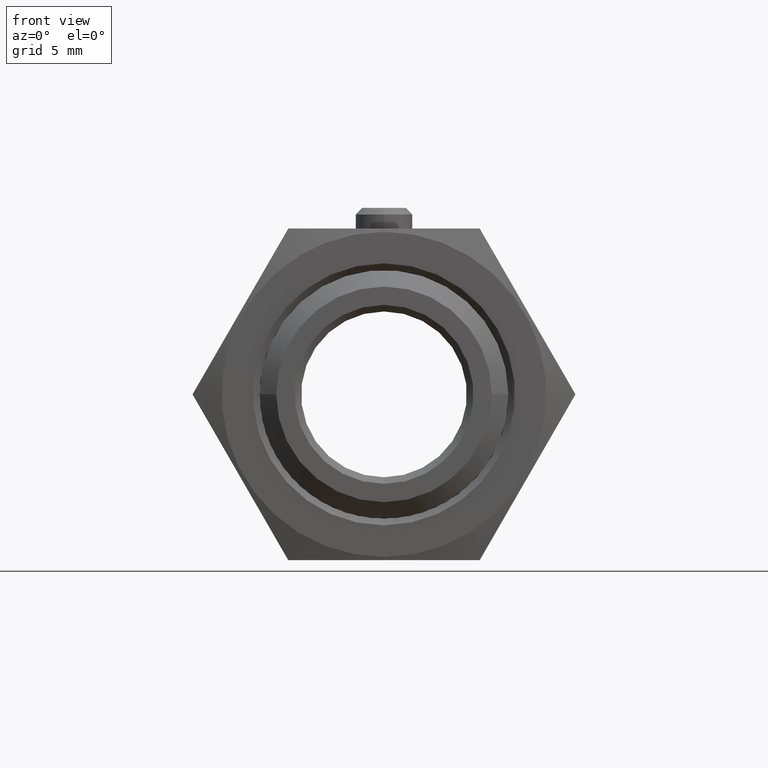
[diagram: clean part render]
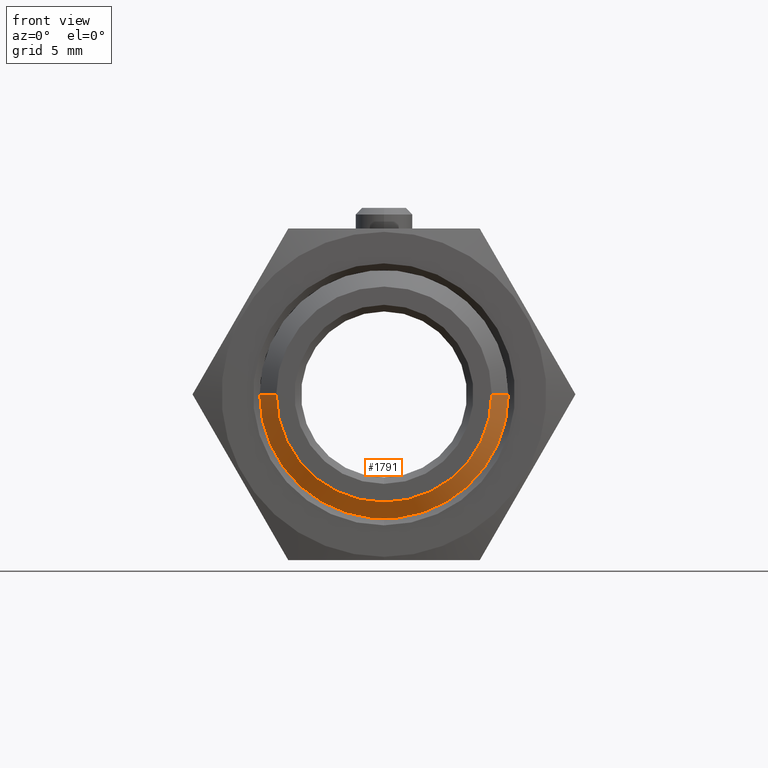
[diagram: same view with one face highlighted and labeled with its STEP entity id]
A machine part, front view. The second image highlights one B-rep face of the part: STEP entity #1791.
In plain terms, the highlighted conical surface has half-angle 45 deg.
Its self-contained STEP definition (entity closure, byte-faithful):
#737 = CARTESIAN_POINT ( 'NONE',  ( 4.127500000000003100, -9.842500000000001100, 5.443555022209986900E-016 ) ) ;
#932 = CARTESIAN_POINT ( 'NONE',  ( 4.127500000000003100, -9.842500000000001100, 5.054729663480701700E-016 ) ) ;
#933 = LINE ( 'NONE', #932, #1110 ) ;
#1110 = VECTOR ( 'NONE', #1264, 999.9999999999998900 ) ;
#1111 = CARTESIAN_POINT ( 'NONE',  ( -4.127499999999999500, -9.842500000000001100, 0.0000000000000000000 ) ) ;
#1264 = DIRECTION ( 'NONE',  ( 0.7071067811865473500, 0.7071067811865477900, 8.659560562354932900E-017 ) ) ;
#1353 = CARTESIAN_POINT ( 'NONE',  ( 4.762500000000002800, -9.207499999999999600, 5.832380380939271100E-016 ) ) ;
#1357 = DIRECTION ( 'NONE',  ( -0.7071067811865475700, 0.7071067811865474600, 0.0000000000000000000 ) ) ;
#1358 = VECTOR ( 'NONE', #1357, 1000.000000000000000 ) ;
#1359 = CARTESIAN_POINT ( 'NONE',  ( -4.127499999999999500, -9.842500000000001100, 0.0000000000000000000 ) ) ;
#1360 = LINE ( 'NONE', #1359, #1358 ) ;
#1382 = CARTESIAN_POINT ( 'NONE',  ( -4.762499999999999300, -9.207499999999999600, 0.0000000000000000000 ) ) ;
#1755 = ORIENTED_EDGE ( 'NONE', *, *, #1772, .F. ) ;
#1758 = ORIENTED_EDGE ( 'NONE', *, *, #2055, .T. ) ;
#1766 = EDGE_CURVE ( 'NONE', #2041, #2040, #2280, .T. ) ;
#1772 = EDGE_CURVE ( 'NONE', #2050, #2053, #2243, .T. ) ;
#1777 = ORIENTED_EDGE ( 'NONE', *, *, #2043, .F. ) ;
#1783 = ORIENTED_EDGE ( 'NONE', *, *, #1766, .T. ) ;
#1791 = ADVANCED_FACE ( 'NONE', ( #2260 ), #2464, .T. ) ;
#1955 = EDGE_LOOP ( 'NONE', ( #1777, #1783, #1758, #1755 ) ) ;
#2040 = VERTEX_POINT ( 'NONE', #1111 ) ;
#2041 = VERTEX_POINT ( 'NONE', #737 ) ;
#2043 = EDGE_CURVE ( 'NONE', #2041, #2050, #933, .T. ) ;
#2050 = VERTEX_POINT ( 'NONE', #1353 ) ;
#2053 = VERTEX_POINT ( 'NONE', #1382 ) ;
#2055 = EDGE_CURVE ( 'NONE', #2040, #2053, #1360, .T. ) ;
#2240 = DIRECTION ( 'NONE',  ( -1.000000000000000000, 0.0000000000000000000, 0.0000000000000000000 ) ) ;
#2241 = DIRECTION ( 'NONE',  ( -1.101551610348493100E-016, 1.000000000000000000, 0.0000000000000000000 ) ) ;
#2242 = AXIS2_PLACEMENT_3D ( 'NONE', #2343, #2241, #2240 ) ;
#2243 = CIRCLE ( 'NONE', #2242, 4.762500000000001100 ) ;
#2249 = DIRECTION ( 'NONE',  ( -1.000000000000000000, 0.0000000000000000000, 0.0000000000000000000 ) ) ;
#2250 = DIRECTION ( 'NONE',  ( -1.101551610348493100E-016, 1.000000000000000000, 0.0000000000000000000 ) ) ;
#2251 = AXIS2_PLACEMENT_3D ( 'NONE', #2388, #2250, #2249 ) ;
#2260 = FACE_OUTER_BOUND ( 'NONE', #1955, .T. ) ;
#2280 = CIRCLE ( 'NONE', #2251, 4.127500000000001300 ) ;
#2343 = CARTESIAN_POINT ( 'NONE',  ( 2.098455817713879700E-015, -9.207499999999999600, 0.0000000000000000000 ) ) ;
#2388 = CARTESIAN_POINT ( 'NONE',  ( 2.168404344971008900E-015, -9.842500000000001100, 0.0000000000000000000 ) ) ;
#2464 = CONICAL_SURFACE ( 'NONE', #2513, 4.127500000000001300, 0.7853981633974482800 ) ;
#2502 = DIRECTION ( 'NONE',  ( -1.000000000000000000, 0.0000000000000000000, 0.0000000000000000000 ) ) ;
#2503 = DIRECTION ( 'NONE',  ( -1.101551610348493100E-016, 1.000000000000000000, 0.0000000000000000000 ) ) ;
#2512 = CARTESIAN_POINT ( 'NONE',  ( 2.168404344971008900E-015, -9.842500000000001100, 0.0000000000000000000 ) ) ;
#2513 = AXIS2_PLACEMENT_3D ( 'NONE', #2512, #2503, #2502 ) ;